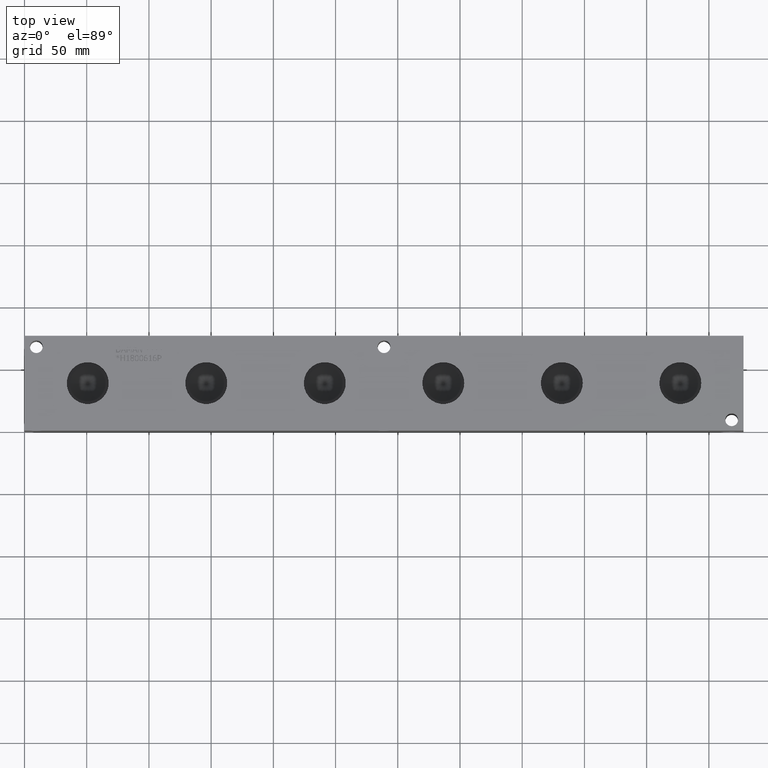
[diagram: clean part render]
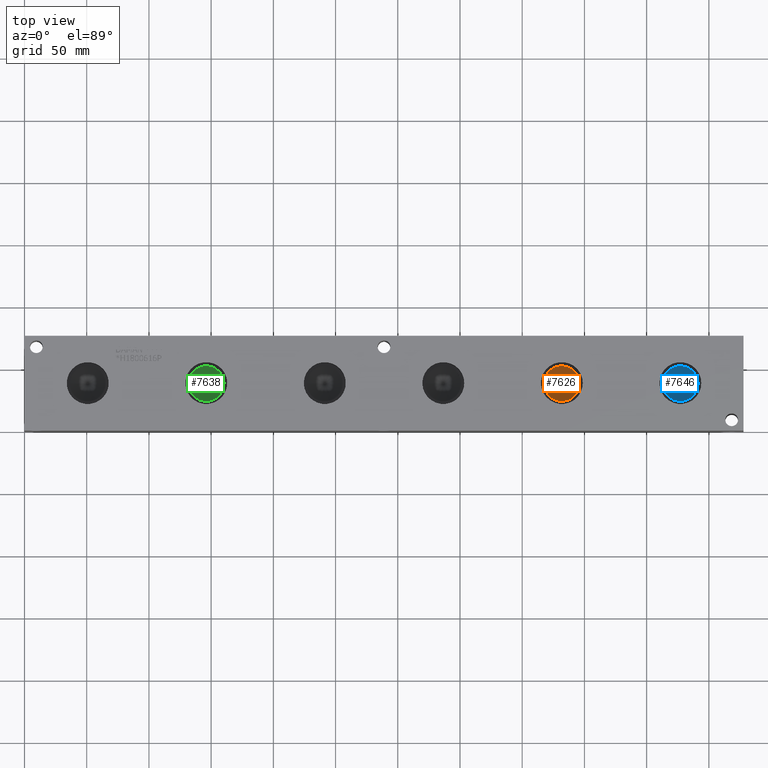
[diagram: same view with three faces highlighted in distinct colors, each labeled with its STEP entity id]
A machine part, top view with three faces highlighted in distinct colors.
Their STEP definitions:

[orange] entity #7626 — the highlighted conical surface has half-angle 60 deg.
#20=CONICAL_SURFACE('',#8014,7.14375,1.0471975511966);
#152=CIRCLE('',#8015,14.2875);
#153=CIRCLE('',#8016,14.2875);
#852=FACE_OUTER_BOUND('',#1285,.T.);
#1285=EDGE_LOOP('',(#6675,#6676,#6677,#6678));
#2042=LINE('',#12940,#2768);
#2768=VECTOR('',#9468,7.14375);
#3658=VERTEX_POINT('',#12936);
#3659=VERTEX_POINT('',#12937);
#3660=VERTEX_POINT('',#12939);
#4690=EDGE_CURVE('',#3658,#3659,#152,.T.);
#4691=EDGE_CURVE('',#3659,#3660,#2042,.T.);
#4692=EDGE_CURVE('',#3659,#3658,#153,.T.);
#6675=ORIENTED_EDGE('',*,*,#4690,.T.);
#6676=ORIENTED_EDGE('',*,*,#4691,.T.);
#6677=ORIENTED_EDGE('',*,*,#4691,.F.);
#6678=ORIENTED_EDGE('',*,*,#4692,.T.);
#7626=ADVANCED_FACE('',(#852),#20,.F.);
#8014=AXIS2_PLACEMENT_3D('',#12935,#9464,#9465);
#8015=AXIS2_PLACEMENT_3D('',#12938,#9466,#9467);
#8016=AXIS2_PLACEMENT_3D('',#12941,#9469,#9470);
#9464=DIRECTION('center_axis',(0.,0.,1.));
#9465=DIRECTION('ref_axis',(1.,0.,0.));
#9466=DIRECTION('center_axis',(0.,0.,1.));
#9467=DIRECTION('ref_axis',(1.,0.,0.));
#9468=DIRECTION('',(0.866025403784438,1.06057523872491E-16,-0.5));
#9469=DIRECTION('center_axis',(0.,0.,1.));
#9470=DIRECTION('ref_axis',(1.,0.,0.));
#12935=CARTESIAN_POINT('Origin',(431.8,38.1,52.2514640144766));
#12936=CARTESIAN_POINT('',(446.0875,38.1,56.37591));
#12937=CARTESIAN_POINT('',(417.5125,38.1,56.37591));
#12938=CARTESIAN_POINT('Origin',(431.8,38.1,56.37591));
#12939=CARTESIAN_POINT('',(431.8,38.1,48.1270180289532));
#12940=CARTESIAN_POINT('',(424.65625,38.1,52.2514640144766));
#12941=CARTESIAN_POINT('Origin',(431.8,38.1,56.37591));

[blue] entity #7646 — the highlighted conical surface has half-angle 60 deg.
#25=CONICAL_SURFACE('',#8059,7.14375,1.0471975511966);
#177=CIRCLE('',#8060,14.2875);
#178=CIRCLE('',#8061,14.2875);
#872=FACE_OUTER_BOUND('',#1310,.T.);
#1310=EDGE_LOOP('',(#6765,#6766,#6767,#6768));
#2057=LINE('',#13030,#2783);
#2783=VECTOR('',#9573,7.14375);
#3688=VERTEX_POINT('',#13026);
#3689=VERTEX_POINT('',#13027);
#3690=VERTEX_POINT('',#13029);
#4730=EDGE_CURVE('',#3688,#3689,#177,.T.);
#4731=EDGE_CURVE('',#3689,#3690,#2057,.T.);
#4732=EDGE_CURVE('',#3689,#3688,#178,.T.);
#6765=ORIENTED_EDGE('',*,*,#4730,.T.);
#6766=ORIENTED_EDGE('',*,*,#4731,.T.);
#6767=ORIENTED_EDGE('',*,*,#4731,.F.);
#6768=ORIENTED_EDGE('',*,*,#4732,.T.);
#7646=ADVANCED_FACE('',(#872),#25,.F.);
#8059=AXIS2_PLACEMENT_3D('',#13025,#9569,#9570);
#8060=AXIS2_PLACEMENT_3D('',#13028,#9571,#9572);
#8061=AXIS2_PLACEMENT_3D('',#13031,#9574,#9575);
#9569=DIRECTION('center_axis',(0.,0.,1.));
#9570=DIRECTION('ref_axis',(1.,0.,0.));
#9571=DIRECTION('center_axis',(0.,0.,1.));
#9572=DIRECTION('ref_axis',(1.,0.,0.));
#9573=DIRECTION('',(0.866025403784438,1.06057523872491E-16,-0.5));
#9574=DIRECTION('center_axis',(0.,0.,1.));
#9575=DIRECTION('ref_axis',(1.,0.,0.));
#13025=CARTESIAN_POINT('Origin',(527.05,38.1,52.2514640144766));
#13026=CARTESIAN_POINT('',(541.3375,38.1,56.37591));
#13027=CARTESIAN_POINT('',(512.7625,38.1,56.37591));
#13028=CARTESIAN_POINT('Origin',(527.05,38.1,56.37591));
#13029=CARTESIAN_POINT('',(527.05,38.1,48.1270180289532));
#13030=CARTESIAN_POINT('',(519.90625,38.1,52.2514640144766));
#13031=CARTESIAN_POINT('Origin',(527.05,38.1,56.37591));

[green] entity #7638 — the highlighted conical surface has half-angle 60 deg.
#23=CONICAL_SURFACE('',#8041,7.14375,1.0471975511966);
#167=CIRCLE('',#8042,14.2875);
#168=CIRCLE('',#8043,14.2875);
#864=FACE_OUTER_BOUND('',#1300,.T.);
#1300=EDGE_LOOP('',(#6729,#6730,#6731,#6732));
#2051=LINE('',#12994,#2777);
#2777=VECTOR('',#9531,7.14375);
#3676=VERTEX_POINT('',#12990);
#3677=VERTEX_POINT('',#12991);
#3678=VERTEX_POINT('',#12993);
#4714=EDGE_CURVE('',#3676,#3677,#167,.T.);
#4715=EDGE_CURVE('',#3677,#3678,#2051,.T.);
#4716=EDGE_CURVE('',#3677,#3676,#168,.T.);
#6729=ORIENTED_EDGE('',*,*,#4714,.T.);
#6730=ORIENTED_EDGE('',*,*,#4715,.T.);
#6731=ORIENTED_EDGE('',*,*,#4715,.F.);
#6732=ORIENTED_EDGE('',*,*,#4716,.T.);
#7638=ADVANCED_FACE('',(#864),#23,.F.);
#8041=AXIS2_PLACEMENT_3D('',#12989,#9527,#9528);
#8042=AXIS2_PLACEMENT_3D('',#12992,#9529,#9530);
#8043=AXIS2_PLACEMENT_3D('',#12995,#9532,#9533);
#9527=DIRECTION('center_axis',(0.,0.,1.));
#9528=DIRECTION('ref_axis',(1.,0.,0.));
#9529=DIRECTION('center_axis',(0.,0.,1.));
#9530=DIRECTION('ref_axis',(1.,0.,0.));
#9531=DIRECTION('',(0.866025403784438,1.06057523872491E-16,-0.5));
#9532=DIRECTION('center_axis',(0.,0.,1.));
#9533=DIRECTION('ref_axis',(1.,0.,0.));
#12989=CARTESIAN_POINT('Origin',(146.05,38.1,52.2514640144766));
#12990=CARTESIAN_POINT('',(160.3375,38.1,56.37591));
#12991=CARTESIAN_POINT('',(131.7625,38.1,56.37591));
#12992=CARTESIAN_POINT('Origin',(146.05,38.1,56.37591));
#12993=CARTESIAN_POINT('',(146.05,38.1,48.1270180289532));
#12994=CARTESIAN_POINT('',(138.90625,38.1,52.2514640144766));
#12995=CARTESIAN_POINT('Origin',(146.05,38.1,56.37591));